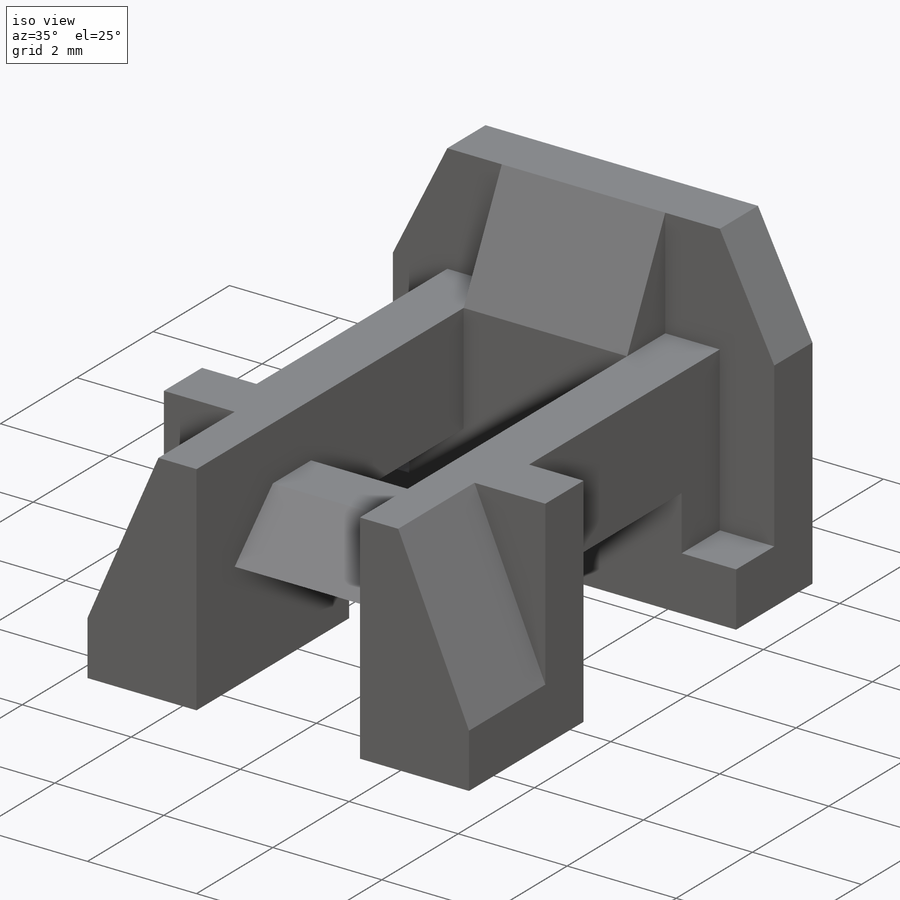
[diagram: iso view]
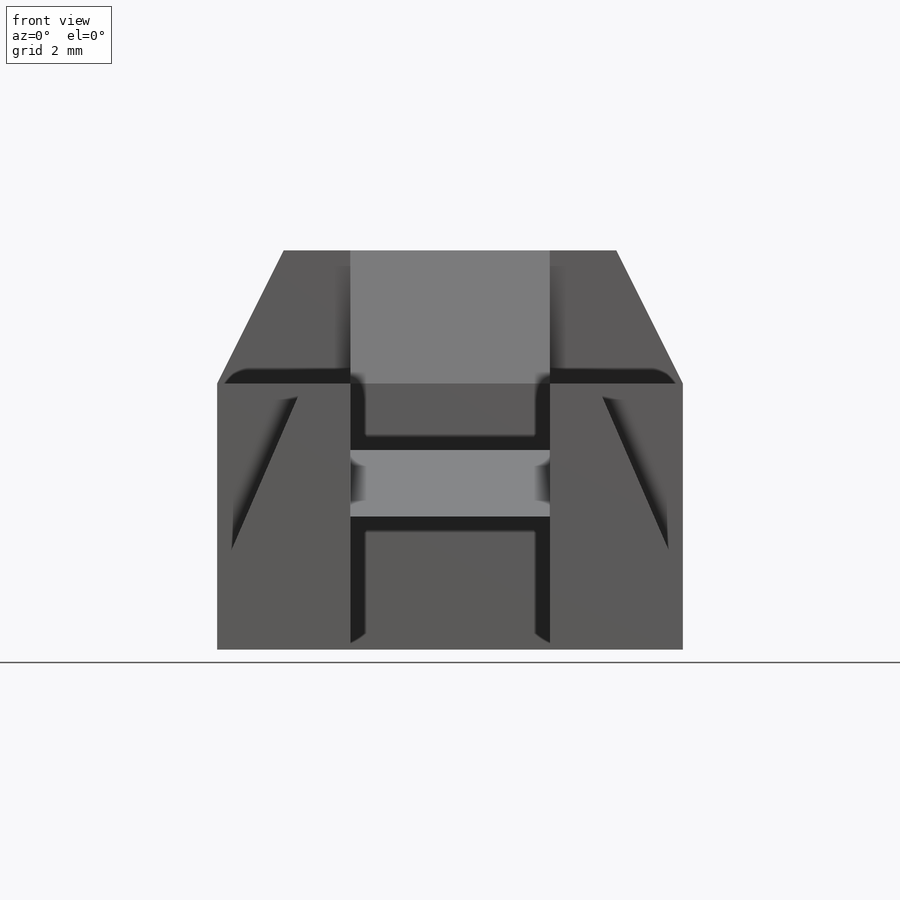
[diagram: front view]
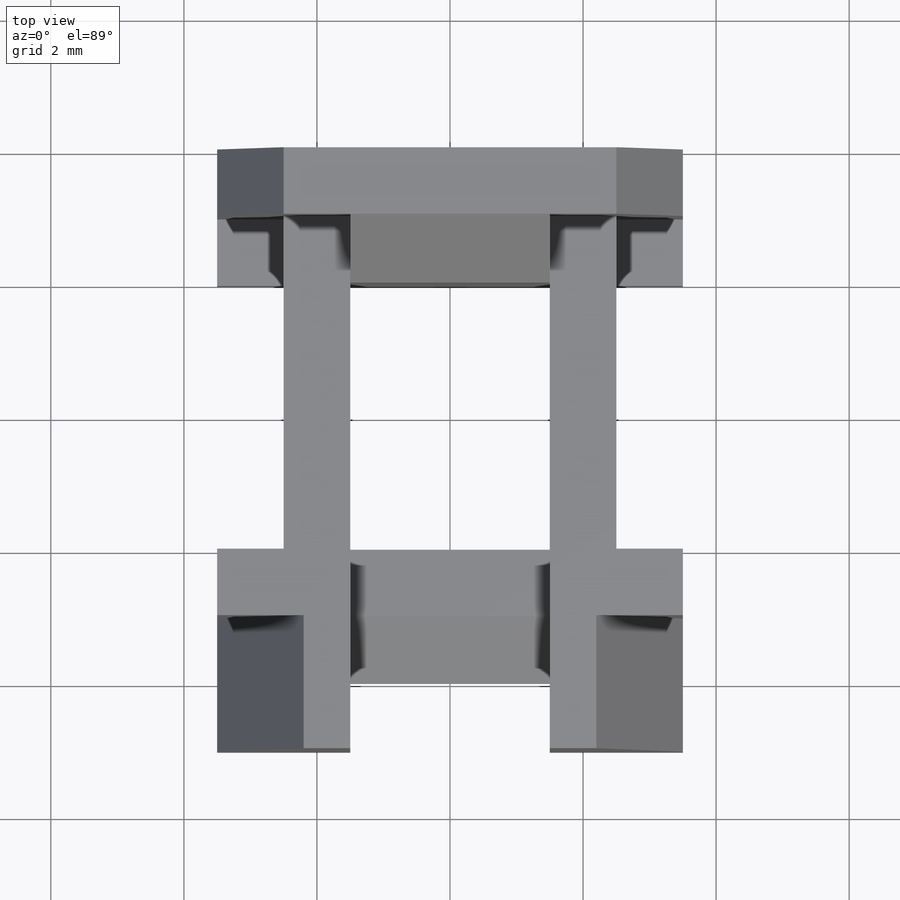
[diagram: top view]
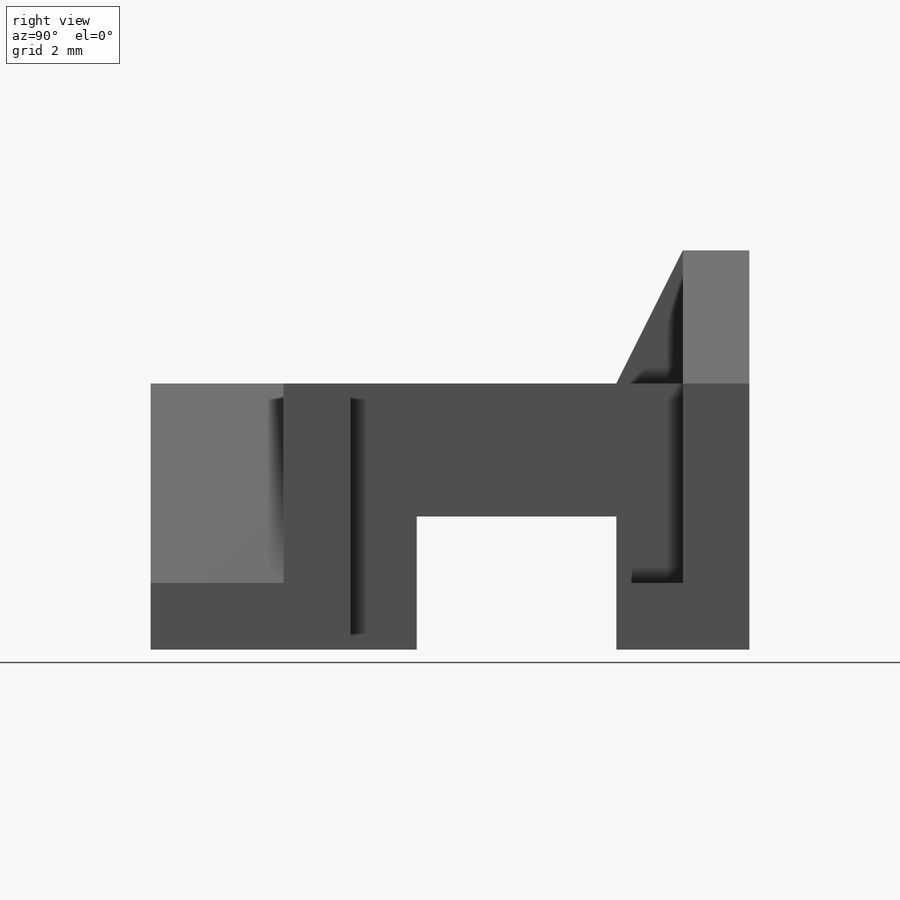
[diagram: right view]
SOLIDWORKS PART (.sldprt)
format: sldprt  version: not decoded by parser v0  size: 499,200 bytes
history: native  units: mm
features: sketch x23, cut_extrude x18, plane x2, material x1, extrude x1 (+13 scaffold rows collapsed)
feature tree (58):
  scaffold x13  (default folders/planes/origin — collapsed)
  material  "Material <not specified>"
  sketch  "Sketch1"  dims[D1=7.0mm D2=6.0mm]
  extrude  "Boss-Extrude1"  Depth=9mm
  sketch  "Sketch2"  dims[D1=1.0mm D2=2.0mm D3=2.0mm D4=4.0mm D5=4.0mm D6=2.0mm D7=1.0mm D8=1.0mm D9=4.0mm D10=2.0mm D11=2.0mm D12=1.0mm]
  cut_extrude  "Cut-Extrude10"  [1 undecoded]
  sketch  "Sketch11"  dims[D1=1.0mm D2=1.0mm D3=2.0mm D4=2.0mm]
  cut_extrude  "Cut-Extrude11"  Depth=1mm
  sketch  "Sketch12"  dims[D1=1.0mm D2=1.0mm]
  cut_extrude  "Cut-Extrude12"  Depth=5mm
  sketch  "Sketch13"  dims[D1=4.0mm D2=4.0mm]
  cut_extrude  "Cut-Extrude13"  [1 undecoded]
  sketch  "Sketch14"  dims[D1=1.0mm D2=1.0mm]
  cut_extrude  "Cut-Extrude14"  Depth=2mm
  sketch  "Sketch15"  dims[D1=2.0mm]
  cut_extrude  "Cut-Extrude17"  Depth=6mm
  sketch  "Sketch18"  dims[D1=1.0mm]
  cut_extrude  "Cut-Extrude18"  Depth=6mm
  sketch  "Sketch19"  dims[D1=1.0mm]
  plane  "Plane4"
  sketch  "Sketch20"
  cut_extrude  "Cut-Extrude19"  Depth=6mm
  sketch  "Sketch21"  dims[D1=1.0mm]
  cut_extrude  "Cut-Extrude20"  [1 undecoded]
  sketch  "Sketch22"  dims[D1=2.0mm]
  cut_extrude  "Cut-Extrude22"  Depth=6mm
  sketch  "Sketch23"  dims[D1=2.0mm D2=3.0mm]
  cut_extrude  "Cut-Extrude24"  Depth=7mm
  sketch  "Sketch24"
  cut_extrude  "Cut-Extrude25"  Depth=2mm
  sketch  "Sketch25"
  cut_extrude  "Cut-Extrude26"  Depth=2mm
  sketch  "Sketch26"  dims[D1=1.0mm D2=1.0mm D3=1.0mm]
  sketch  "Sketch27"
  plane  "Plane8"
  sketch  "Sketch28"
  cut_extrude  "Cut-Extrude27"  Depth=2mm
  sketch  "Sketch29"
  cut_extrude  "Cut-Extrude28"  Depth=1mm
  sketch  "Sketch30"
  cut_extrude  "Cut-Extrude29"  Depth=1mm
  sketch  "Sketch31"  dims[D1=2.0mm D2=3.0mm]
  cut_extrude  "Cut-Extrude30"  Depth=40mm
  sketch  "Sketch32"  dims[D1=1.0mm D2=1.0mm]
  sketch  "Sketch33"
  cut_extrude  "Cut-Extrude31"  Depth=3mm
decode coverage: 31 of 42 modeling features carry decoded parameters
note: 3 parameter values undecoded
summary: no parameter record found for 3 features
note: suppression state not decoded; provenance and decode notes live in map.json
